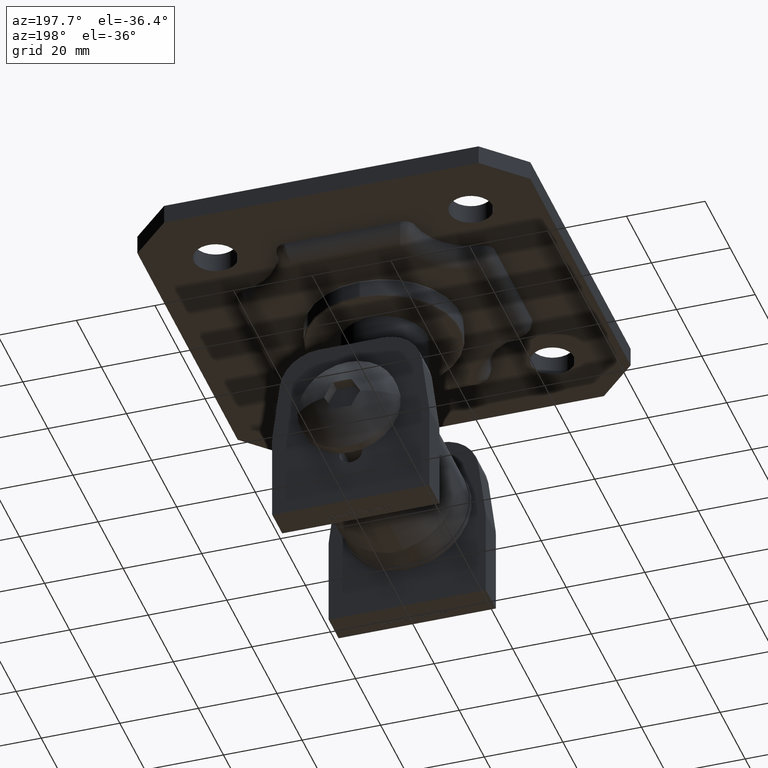
[diagram: clean part render]
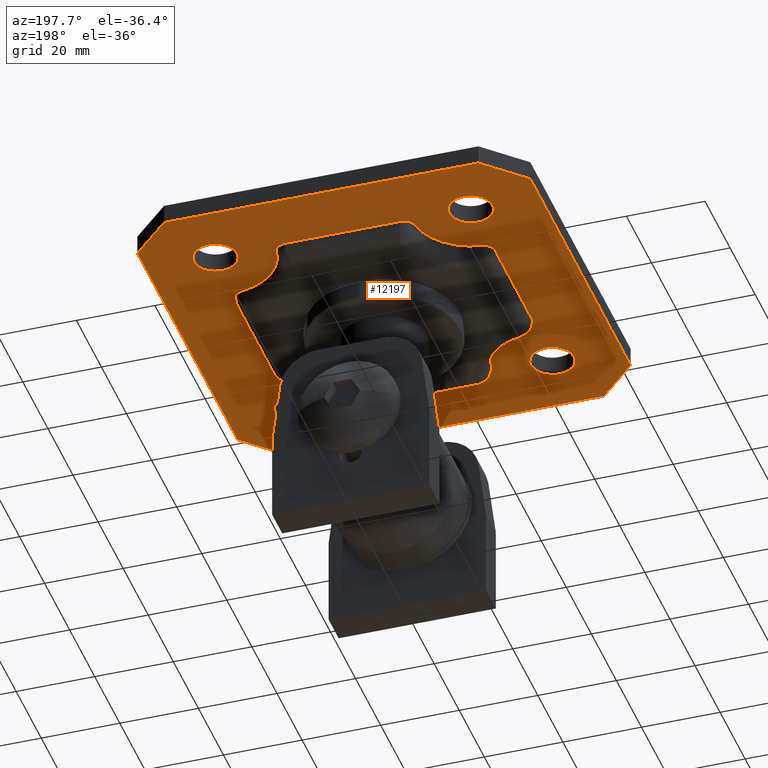
[diagram: same view with one face highlighted and labeled with its STEP entity id]
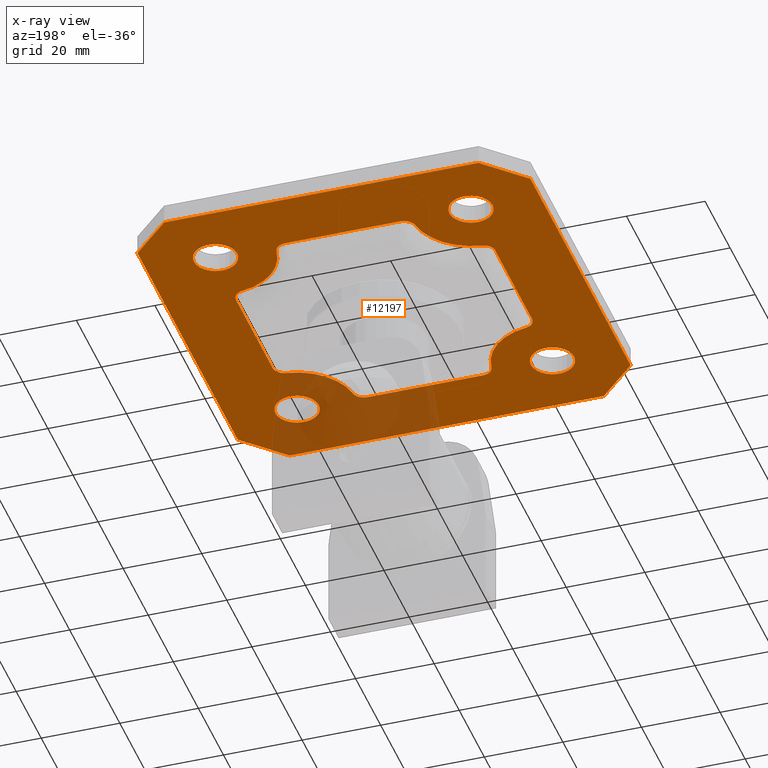
[diagram: x-ray of the same camera — body ghosted, the highlighted face saturated]
A machine part, auxiliary view. The second image highlights one B-rep face of the part: STEP entity #12197.
The next image is the same camera in x-ray: the body ghosted, the highlighted face saturated — about 14% of this face is hidden behind the body in this view.
In plain terms, the highlighted planar face has unit normal (0, 0, -1).
Its self-contained STEP definition (entity closure, byte-faithful):
#4 = VERTEX_POINT ( 'NONE', #13629 ) ;
#54 = CARTESIAN_POINT ( 'NONE',  ( -33.00000000000072500, 14.67445653002448200, 2.500000000000002200 ) ) ;
#106 = ORIENTED_EDGE ( 'NONE', *, *, #14741, .F. ) ;
#114 = VECTOR ( 'NONE', #8199, 1000.000000000000000 ) ;
#141 = DIRECTION ( 'NONE',  ( 0.0000000000000000000, 0.0000000000000000000, -1.000000000000000000 ) ) ;
#198 = LINE ( 'NONE', #10605, #11811 ) ;
#201 = EDGE_CURVE ( 'NONE', #4066, #16211, #8967, .T. ) ;
#241 = EDGE_CURVE ( 'NONE', #4, #11179, #6632, .T. ) ;
#295 = ORIENTED_EDGE ( 'NONE', *, *, #1381, .F. ) ;
#313 = LINE ( 'NONE', #4965, #13623 ) ;
#332 = CARTESIAN_POINT ( 'NONE',  ( -50.00000000000146400, 50.00000000000145000, 2.500000000000002200 ) ) ;
#350 = AXIS2_PLACEMENT_3D ( 'NONE', #1067, #3808, #15915 ) ;
#363 = ORIENTED_EDGE ( 'NONE', *, *, #16099, .F. ) ;
#392 = VECTOR ( 'NONE', #4479, 1000.000000000000000 ) ;
#410 = AXIS2_PLACEMENT_3D ( 'NONE', #12092, #13455, #1261 ) ;
#420 = CARTESIAN_POINT ( 'NONE',  ( -50.00000000000146400, 50.00000000000145000, 2.500000000000002200 ) ) ;
#453 = CIRCLE ( 'NONE', #4425, 5.500000000000122600 ) ;
#547 = DIRECTION ( 'NONE',  ( -0.0000000000000000000, -0.0000000000000000000, -1.000000000000000000 ) ) ;
#681 = CARTESIAN_POINT ( 'NONE',  ( -27.00000000000073500, -32.50000000000073900, 2.500000000000002200 ) ) ;
#716 = DIRECTION ( 'NONE',  ( 0.0000000000000000000, 0.0000000000000000000, 1.000000000000000000 ) ) ;
#994 = AXIS2_PLACEMENT_3D ( 'NONE', #14898, #141, #10810 ) ;
#1066 = DIRECTION ( 'NONE',  ( 1.000000000000000000, 0.0000000000000000000, 0.0000000000000000000 ) ) ;
#1067 = CARTESIAN_POINT ( 'NONE',  ( -30.00000000000072500, 14.67445653002448200, 2.500000000000002200 ) ) ;
#1091 = EDGE_CURVE ( 'NONE', #7511, #2067, #2011, .T. ) ;
#1233 = LINE ( 'NONE', #332, #9242 ) ;
#1261 = DIRECTION ( 'NONE',  ( 1.000000000000000000, 0.0000000000000000000, 0.0000000000000000000 ) ) ;
#1293 = AXIS2_PLACEMENT_3D ( 'NONE', #3813, #7749, #2409 ) ;
#1373 = CARTESIAN_POINT ( 'NONE',  ( -33.00000000000072500, 17.50833564943542000, 2.500000000000002200 ) ) ;
#1381 = EDGE_CURVE ( 'NONE', #9976, #8671, #4531, .T. ) ;
#1542 = ORIENTED_EDGE ( 'NONE', *, *, #13569, .T. ) ;
#1592 = DIRECTION ( 'NONE',  ( 0.0000000000000000000, 0.0000000000000000000, -1.000000000000000000 ) ) ;
#1632 = EDGE_CURVE ( 'NONE', #4158, #9030, #3922, .T. ) ;
#1689 = EDGE_LOOP ( 'NONE', ( #15561, #3233 ) ) ;
#1737 = ORIENTED_EDGE ( 'NONE', *, *, #13644, .T. ) ;
#1769 = DIRECTION ( 'NONE',  ( 1.000000000000000000, 0.0000000000000000000, 0.0000000000000000000 ) ) ;
#1794 = CARTESIAN_POINT ( 'NONE',  ( 40.00000000000070300, 50.00000000000145000, 2.500000000000002200 ) ) ;
#1813 = EDGE_CURVE ( 'NONE', #10911, #2622, #2637, .T. ) ;
#2011 = CIRCLE ( 'NONE', #13645, 3.000000000000068400 ) ;
#2067 = VERTEX_POINT ( 'NONE', #14310 ) ;
#2280 = CIRCLE ( 'NONE', #350, 3.000000000000068400 ) ;
#2305 = EDGE_CURVE ( 'NONE', #7795, #14735, #12748, .T. ) ;
#2348 = EDGE_CURVE ( 'NONE', #6807, #2812, #9148, .T. ) ;
#2394 = CARTESIAN_POINT ( 'NONE',  ( 30.00000000000072500, -14.67445653002448200, 2.500000000000002200 ) ) ;
#2409 = DIRECTION ( 'NONE',  ( 1.000000000000000000, 0.0000000000000000000, 0.0000000000000000000 ) ) ;
#2497 = ORIENTED_EDGE ( 'NONE', *, *, #7103, .T. ) ;
#2551 = AXIS2_PLACEMENT_3D ( 'NONE', #11453, #6173, #16701 ) ;
#2555 = LINE ( 'NONE', #420, #14969 ) ;
#2592 = VERTEX_POINT ( 'NONE', #5577 ) ;
#2596 = ORIENTED_EDGE ( 'NONE', *, *, #6244, .F. ) ;
#2622 = VERTEX_POINT ( 'NONE', #12221 ) ;
#2637 = CIRCLE ( 'NONE', #994, 15.00000000000034600 ) ;
#2682 = ORIENTED_EDGE ( 'NONE', *, *, #2305, .T. ) ;
#2698 = DIRECTION ( 'NONE',  ( 0.7071067811865464600, -0.7071067811865485700, -0.0000000000000000000 ) ) ;
#2785 = FACE_BOUND ( 'NONE', #1689, .T. ) ;
#2812 = VERTEX_POINT ( 'NONE', #5839 ) ;
#2953 = DIRECTION ( 'NONE',  ( -0.7071067811865485700, -0.7071067811865464600, -0.0000000000000000000 ) ) ;
#2966 = CARTESIAN_POINT ( 'NONE',  ( -40.00000000000073200, 50.00000000000145000, 2.500000000000002200 ) ) ;
#3093 = AXIS2_PLACEMENT_3D ( 'NONE', #4240, #15080, #12303 ) ;
#3186 = VERTEX_POINT ( 'NONE', #681 ) ;
#3194 = CARTESIAN_POINT ( 'NONE',  ( -17.50833564943542300, -33.00000000000072500, 2.500000000000002200 ) ) ;
#3233 = ORIENTED_EDGE ( 'NONE', *, *, #10556, .F. ) ;
#3255 = LINE ( 'NONE', #3988, #5986 ) ;
#3288 = DIRECTION ( 'NONE',  ( 1.000000000000000000, 0.0000000000000000000, 0.0000000000000000000 ) ) ;
#3446 = CARTESIAN_POINT ( 'NONE',  ( 45.00000000000077400, 45.00000000000065400, 2.500000000000002200 ) ) ;
#3467 = CARTESIAN_POINT ( 'NONE',  ( -30.00000000000072500, -14.67445653002447900, 2.500000000000002200 ) ) ;
#3688 = DIRECTION ( 'NONE',  ( 1.000000000000000000, 0.0000000000000000000, 0.0000000000000000000 ) ) ;
#3808 = DIRECTION ( 'NONE',  ( -0.0000000000000000000, -0.0000000000000000000, -1.000000000000000000 ) ) ;
#3813 = CARTESIAN_POINT ( 'NONE',  ( -14.67445653002448900, -30.00000000000072500, 2.500000000000002200 ) ) ;
#3823 = ORIENTED_EDGE ( 'NONE', *, *, #1091, .T. ) ;
#3834 = CARTESIAN_POINT ( 'NONE',  ( 32.50000000000071800, -32.50000000000073900, 2.500000000000002200 ) ) ;
#3860 = ORIENTED_EDGE ( 'NONE', *, *, #7656, .F. ) ;
#3922 = LINE ( 'NONE', #3446, #13382 ) ;
#3988 = CARTESIAN_POINT ( 'NONE',  ( 45.00000000000060400, -45.00000000000079600, 2.500000000000002200 ) ) ;
#4042 = EDGE_CURVE ( 'NONE', #9030, #7795, #1233, .T. ) ;
#4066 = VERTEX_POINT ( 'NONE', #9828 ) ;
#4129 = VERTEX_POINT ( 'NONE', #4244 ) ;
#4158 = VERTEX_POINT ( 'NONE', #10240 ) ;
#4179 = AXIS2_PLACEMENT_3D ( 'NONE', #6835, #5531, #10942 ) ;
#4203 = LINE ( 'NONE', #3194, #392 ) ;
#4215 = LINE ( 'NONE', #12154, #10947 ) ;
#4240 = CARTESIAN_POINT ( 'NONE',  ( 30.00000000000072500, 14.67445653002448200, 2.500000000000002200 ) ) ;
#4244 = CARTESIAN_POINT ( 'NONE',  ( -50.00000000000145700, -40.00000000000066100, 2.500000000000002200 ) ) ;
#4324 = AXIS2_PLACEMENT_3D ( 'NONE', #12428, #12618, #5974 ) ;
#4327 = ORIENTED_EDGE ( 'NONE', *, *, #1813, .F. ) ;
#4371 = DIRECTION ( 'NONE',  ( 1.000000000000000000, 0.0000000000000000000, 0.0000000000000000000 ) ) ;
#4425 = AXIS2_PLACEMENT_3D ( 'NONE', #14892, #14946, #8167 ) ;
#4479 = DIRECTION ( 'NONE',  ( 1.000000000000000000, 0.0000000000000000000, 0.0000000000000000000 ) ) ;
#4496 = ORIENTED_EDGE ( 'NONE', *, *, #17101, .T. ) ;
#4500 = CARTESIAN_POINT ( 'NONE',  ( 27.00000000000071800, -32.50000000000073900, 2.500000000000002200 ) ) ;
#4531 = CIRCLE ( 'NONE', #410, 5.500000000000122600 ) ;
#4560 = AXIS2_PLACEMENT_3D ( 'NONE', #3467, #7616, #7559 ) ;
#4569 = DIRECTION ( 'NONE',  ( 2.081668171172159400E-016, -1.000000000000000000, -0.0000000000000000000 ) ) ;
#4749 = DIRECTION ( 'NONE',  ( 0.0000000000000000000, 0.0000000000000000000, 1.000000000000000000 ) ) ;
#4762 = CARTESIAN_POINT ( 'NONE',  ( -50.00000000000145700, 40.00000000000074600, 2.500000000000002200 ) ) ;
#4787 = VERTEX_POINT ( 'NONE', #16514 ) ;
#4788 = CARTESIAN_POINT ( 'NONE',  ( -32.50000000000073200, 32.50000000000073200, 2.500000000000002200 ) ) ;
#4965 = CARTESIAN_POINT ( 'NONE',  ( -17.50833564943542300, 33.00000000000072500, 2.500000000000002200 ) ) ;
#5020 = DIRECTION ( 'NONE',  ( -0.7071067811865464600, 0.7071067811865485700, 0.0000000000000000000 ) ) ;
#5082 = CIRCLE ( 'NONE', #16619, 3.000000000000068400 ) ;
#5176 = ORIENTED_EDGE ( 'NONE', *, *, #11142, .T. ) ;
#5263 = CARTESIAN_POINT ( 'NONE',  ( -14.67445653002448900, -33.00000000000072500, 2.500000000000002200 ) ) ;
#5410 = CIRCLE ( 'NONE', #2551, 15.00000000000034600 ) ;
#5531 = DIRECTION ( 'NONE',  ( 0.0000000000000000000, 0.0000000000000000000, 1.000000000000000000 ) ) ;
#5577 = CARTESIAN_POINT ( 'NONE',  ( 40.00000000000064700, -50.00000000000145000, 2.500000000000002200 ) ) ;
#5704 = CARTESIAN_POINT ( 'NONE',  ( -30.41666666666738900, 17.64538044168713400, 2.500000000000002200 ) ) ;
#5839 = CARTESIAN_POINT ( 'NONE',  ( 38.00000000000071100, -32.50000000000073900, 2.500000000000002200 ) ) ;
#5974 = DIRECTION ( 'NONE',  ( 1.000000000000000000, 0.0000000000000000000, 0.0000000000000000000 ) ) ;
#5986 = VECTOR ( 'NONE', #8095, 1000.000000000000200 ) ;
#6021 = ORIENTED_EDGE ( 'NONE', *, *, #241, .T. ) ;
#6138 = DIRECTION ( 'NONE',  ( 0.0000000000000000000, 0.0000000000000000000, 1.000000000000000000 ) ) ;
#6173 = DIRECTION ( 'NONE',  ( 0.0000000000000000000, 0.0000000000000000000, -1.000000000000000000 ) ) ;
#6205 = CARTESIAN_POINT ( 'NONE',  ( 14.67445653002448200, -30.00000000000072500, 2.500000000000002200 ) ) ;
#6222 = VERTEX_POINT ( 'NONE', #5704 ) ;
#6244 = EDGE_CURVE ( 'NONE', #14431, #6222, #13843, .T. ) ;
#6272 = DIRECTION ( 'NONE',  ( 1.000000000000000000, 0.0000000000000000000, 0.0000000000000000000 ) ) ;
#6374 = FACE_BOUND ( 'NONE', #8704, .T. ) ;
#6568 = CARTESIAN_POINT ( 'NONE',  ( 33.00000000000072500, 17.50833564943542000, 2.500000000000002200 ) ) ;
#6592 = CARTESIAN_POINT ( 'NONE',  ( 38.00000000000071100, 32.50000000000069600, 2.500000000000002200 ) ) ;
#6632 = CIRCLE ( 'NONE', #9892, 3.000000000000068400 ) ;
#6646 = EDGE_LOOP ( 'NONE', ( #11408, #10247 ) ) ;
#6678 = DIRECTION ( 'NONE',  ( -6.938893903907195100E-017, 1.000000000000000000, 0.0000000000000000000 ) ) ;
#6807 = VERTEX_POINT ( 'NONE', #4500 ) ;
#6808 = CIRCLE ( 'NONE', #8271, 5.500000000000122600 ) ;
#6835 = CARTESIAN_POINT ( 'NONE',  ( 32.50000000000071800, -32.50000000000073900, 2.500000000000002200 ) ) ;
#6858 = EDGE_LOOP ( 'NONE', ( #3860, #2497, #2596, #4496, #8533, #3823, #106, #5176, #363, #6021, #11218, #14816, #13751, #8393, #4327, #15542 ) ) ;
#6900 = DIRECTION ( 'NONE',  ( -1.000000000000000000, 0.0000000000000000000, 0.0000000000000000000 ) ) ;
#7103 = EDGE_CURVE ( 'NONE', #7645, #6222, #2280, .T. ) ;
#7511 = VERTEX_POINT ( 'NONE', #11797 ) ;
#7559 = DIRECTION ( 'NONE',  ( 1.000000000000000000, 1.156482317317845100E-015, 0.0000000000000000000 ) ) ;
#7616 = DIRECTION ( 'NONE',  ( -0.0000000000000000000, -0.0000000000000000000, -1.000000000000000000 ) ) ;
#7645 = VERTEX_POINT ( 'NONE', #54 ) ;
#7656 = EDGE_CURVE ( 'NONE', #7645, #13056, #13214, .T. ) ;
#7663 = ORIENTED_EDGE ( 'NONE', *, *, #4042, .T. ) ;
#7749 = DIRECTION ( 'NONE',  ( -0.0000000000000000000, -0.0000000000000000000, -1.000000000000000000 ) ) ;
#7781 = CARTESIAN_POINT ( 'NONE',  ( -40.00000000000073200, -50.00000000000145000, 2.500000000000002200 ) ) ;
#7795 = VERTEX_POINT ( 'NONE', #2966 ) ;
#7898 = VERTEX_POINT ( 'NONE', #12802 ) ;
#7962 = EDGE_CURVE ( 'NONE', #8671, #9976, #12344, .T. ) ;
#8002 = DIRECTION ( 'NONE',  ( 1.000000000000000000, 0.0000000000000000000, 0.0000000000000000000 ) ) ;
#8018 = EDGE_CURVE ( 'NONE', #7511, #15496, #313, .T. ) ;
#8095 = DIRECTION ( 'NONE',  ( 0.7071067811865490200, 0.7071067811865460200, -0.0000000000000000000 ) ) ;
#8167 = DIRECTION ( 'NONE',  ( 1.000000000000000000, 0.0000000000000000000, 0.0000000000000000000 ) ) ;
#8175 = CARTESIAN_POINT ( 'NONE',  ( -38.00000000000072500, 32.50000000000073200, 2.500000000000002200 ) ) ;
#8188 = CARTESIAN_POINT ( 'NONE',  ( 30.41666666666738900, -17.64538044168713400, 2.500000000000002200 ) ) ;
#8199 = DIRECTION ( 'NONE',  ( 0.0000000000000000000, -1.000000000000000000, -0.0000000000000000000 ) ) ;
#8238 = CARTESIAN_POINT ( 'NONE',  ( -45.00000000000066800, 45.00000000000079600, 2.500000000000002200 ) ) ;
#8271 = AXIS2_PLACEMENT_3D ( 'NONE', #11557, #716, #6272 ) ;
#8291 = CARTESIAN_POINT ( 'NONE',  ( -32.50000000000073200, 32.50000000000073200, 2.500000000000002200 ) ) ;
#8393 = ORIENTED_EDGE ( 'NONE', *, *, #13911, .T. ) ;
#8450 = FACE_BOUND ( 'NONE', #14000, .T. ) ;
#8533 = ORIENTED_EDGE ( 'NONE', *, *, #8018, .F. ) ;
#8594 = AXIS2_PLACEMENT_3D ( 'NONE', #3834, #11982, #13245 ) ;
#8609 = CIRCLE ( 'NONE', #8594, 5.500000000000122600 ) ;
#8668 = LINE ( 'NONE', #6568, #10146 ) ;
#8671 = VERTEX_POINT ( 'NONE', #12879 ) ;
#8704 = EDGE_LOOP ( 'NONE', ( #9710, #11960 ) ) ;
#8782 = EDGE_LOOP ( 'NONE', ( #7663, #2682, #1737, #10983, #16314, #17098, #1542, #15776 ) ) ;
#8967 = CIRCLE ( 'NONE', #11706, 3.000000000000068400 ) ;
#8975 = EDGE_CURVE ( 'NONE', #13116, #3186, #13582, .T. ) ;
#9030 = VERTEX_POINT ( 'NONE', #1794 ) ;
#9065 = AXIS2_PLACEMENT_3D ( 'NONE', #4788, #6138, #14346 ) ;
#9148 = CIRCLE ( 'NONE', #4179, 5.500000000000122600 ) ;
#9176 = VERTEX_POINT ( 'NONE', #7781 ) ;
#9187 = DIRECTION ( 'NONE',  ( -0.0000000000000000000, -0.0000000000000000000, -1.000000000000000000 ) ) ;
#9242 = VECTOR ( 'NONE', #6900, 1000.000000000000000 ) ;
#9288 = AXIS2_PLACEMENT_3D ( 'NONE', #16177, #4749, #3288 ) ;
#9497 = AXIS2_PLACEMENT_3D ( 'NONE', #15593, #13007, #17008 ) ;
#9580 = PLANE ( 'NONE',  #9288 ) ;
#9623 = LINE ( 'NONE', #13394, #10800 ) ;
#9710 = ORIENTED_EDGE ( 'NONE', *, *, #15803, .F. ) ;
#9828 = CARTESIAN_POINT ( 'NONE',  ( 17.64538044168713400, -30.41666666666738900, 2.500000000000002200 ) ) ;
#9892 = AXIS2_PLACEMENT_3D ( 'NONE', #2394, #9187, #8002 ) ;
#9976 = VERTEX_POINT ( 'NONE', #8175 ) ;
#10146 = VECTOR ( 'NONE', #14815, 1000.000000000000000 ) ;
#10232 = EDGE_CURVE ( 'NONE', #2592, #12696, #3255, .T. ) ;
#10240 = CARTESIAN_POINT ( 'NONE',  ( 50.00000000000144200, 40.00000000000069600, 2.500000000000002200 ) ) ;
#10247 = ORIENTED_EDGE ( 'NONE', *, *, #14514, .F. ) ;
#10327 = CIRCLE ( 'NONE', #1293, 3.000000000000068400 ) ;
#10341 = FACE_BOUND ( 'NONE', #6858, .T. ) ;
#10556 = EDGE_CURVE ( 'NONE', #3186, #13116, #16725, .T. ) ;
#10605 = CARTESIAN_POINT ( 'NONE',  ( -50.00000000000145000, -50.00000000000145000, 2.500000000000002200 ) ) ;
#10670 = EDGE_CURVE ( 'NONE', #10911, #13056, #17355, .T. ) ;
#10797 = CIRCLE ( 'NONE', #9497, 15.00000000000034600 ) ;
#10800 = VECTOR ( 'NONE', #2698, 999.9999999999998900 ) ;
#10810 = DIRECTION ( 'NONE',  ( 1.000000000000000000, 0.0000000000000000000, 0.0000000000000000000 ) ) ;
#10911 = VERTEX_POINT ( 'NONE', #11899 ) ;
#10942 = DIRECTION ( 'NONE',  ( 1.000000000000000000, 0.0000000000000000000, 0.0000000000000000000 ) ) ;
#10947 = VECTOR ( 'NONE', #6678, 1000.000000000000000 ) ;
#10983 = ORIENTED_EDGE ( 'NONE', *, *, #14867, .T. ) ;
#11127 = DIRECTION ( 'NONE',  ( 0.0000000000000000000, 0.0000000000000000000, 1.000000000000000000 ) ) ;
#11142 = EDGE_CURVE ( 'NONE', #7898, #4787, #11657, .T. ) ;
#11179 = VERTEX_POINT ( 'NONE', #8188 ) ;
#11218 = ORIENTED_EDGE ( 'NONE', *, *, #14713, .F. ) ;
#11406 = CARTESIAN_POINT ( 'NONE',  ( -14.67445653002448200, 33.00000000000072500, 2.500000000000002200 ) ) ;
#11408 = ORIENTED_EDGE ( 'NONE', *, *, #2348, .F. ) ;
#11453 = CARTESIAN_POINT ( 'NONE',  ( 32.50000000000073200, -32.50000000000073200, 2.500000000000002200 ) ) ;
#11557 = CARTESIAN_POINT ( 'NONE',  ( 32.50000000000071800, 32.50000000000069600, 2.500000000000002200 ) ) ;
#11657 = CIRCLE ( 'NONE', #3093, 3.000000000000068400 ) ;
#11706 = AXIS2_PLACEMENT_3D ( 'NONE', #6205, #17146, #3688 ) ;
#11797 = CARTESIAN_POINT ( 'NONE',  ( 14.67445653002448600, 33.00000000000072500, 2.500000000000002200 ) ) ;
#11810 = CARTESIAN_POINT ( 'NONE',  ( 27.00000000000072100, 32.50000000000069600, 2.500000000000002200 ) ) ;
#11811 = VECTOR ( 'NONE', #1066, 1000.000000000000000 ) ;
#11899 = CARTESIAN_POINT ( 'NONE',  ( -30.41666666666739300, -17.64538044168712400, 2.500000000000002200 ) ) ;
#11960 = ORIENTED_EDGE ( 'NONE', *, *, #15085, .F. ) ;
#11966 = DIRECTION ( 'NONE',  ( -0.0000000000000000000, -0.0000000000000000000, -1.000000000000000000 ) ) ;
#11982 = DIRECTION ( 'NONE',  ( 0.0000000000000000000, 0.0000000000000000000, 1.000000000000000000 ) ) ;
#12092 = CARTESIAN_POINT ( 'NONE',  ( -32.50000000000073200, 32.50000000000073200, 2.500000000000002200 ) ) ;
#12154 = CARTESIAN_POINT ( 'NONE',  ( 50.00000000000144200, 50.00000000000145000, 2.500000000000002200 ) ) ;
#12197 = ADVANCED_FACE ( 'NONE', ( #13517, #8450, #17111, #6374, #2785, #10341 ), #9580, .T. ) ;
#12221 = CARTESIAN_POINT ( 'NONE',  ( -17.64538044168713800, -30.41666666666738900, 2.500000000000002200 ) ) ;
#12303 = DIRECTION ( 'NONE',  ( 1.000000000000000000, 1.156482317317845100E-015, 0.0000000000000000000 ) ) ;
#12344 = CIRCLE ( 'NONE', #9065, 5.500000000000122600 ) ;
#12369 = CARTESIAN_POINT ( 'NONE',  ( 50.00000000000144200, -40.00000000000072500, 2.500000000000002200 ) ) ;
#12428 = CARTESIAN_POINT ( 'NONE',  ( -32.50000000000073200, -32.50000000000073900, 2.500000000000002200 ) ) ;
#12546 = AXIS2_PLACEMENT_3D ( 'NONE', #8291, #1592, #1769 ) ;
#12618 = DIRECTION ( 'NONE',  ( 0.0000000000000000000, 0.0000000000000000000, 1.000000000000000000 ) ) ;
#12696 = VERTEX_POINT ( 'NONE', #12369 ) ;
#12748 = LINE ( 'NONE', #8238, #13790 ) ;
#12751 = DIRECTION ( 'NONE',  ( 1.000000000000000000, -3.469446951953534900E-015, 0.0000000000000000000 ) ) ;
#12802 = CARTESIAN_POINT ( 'NONE',  ( 30.41666666666738900, 17.64538044168713400, 2.500000000000002200 ) ) ;
#12879 = CARTESIAN_POINT ( 'NONE',  ( -27.00000000000073500, 32.50000000000073200, 2.500000000000002200 ) ) ;
#12998 = VERTEX_POINT ( 'NONE', #6592 ) ;
#13007 = DIRECTION ( 'NONE',  ( 0.0000000000000000000, 0.0000000000000000000, -1.000000000000000000 ) ) ;
#13056 = VERTEX_POINT ( 'NONE', #15946 ) ;
#13076 = CARTESIAN_POINT ( 'NONE',  ( -17.64538044168713400, 30.41666666666738900, 2.500000000000002200 ) ) ;
#13116 = VERTEX_POINT ( 'NONE', #13253 ) ;
#13205 = DIRECTION ( 'NONE',  ( -1.000000000000000000, 0.0000000000000000000, 0.0000000000000000000 ) ) ;
#13214 = LINE ( 'NONE', #1373, #114 ) ;
#13245 = DIRECTION ( 'NONE',  ( 1.000000000000000000, 0.0000000000000000000, 0.0000000000000000000 ) ) ;
#13253 = CARTESIAN_POINT ( 'NONE',  ( -38.00000000000072500, -32.50000000000073900, 2.500000000000002200 ) ) ;
#13370 = VERTEX_POINT ( 'NONE', #11810 ) ;
#13382 = VECTOR ( 'NONE', #5020, 999.9999999999998900 ) ;
#13394 = CARTESIAN_POINT ( 'NONE',  ( -45.00000000000078200, -45.00000000000066100, 2.500000000000002200 ) ) ;
#13455 = DIRECTION ( 'NONE',  ( 0.0000000000000000000, 0.0000000000000000000, 1.000000000000000000 ) ) ;
#13517 = FACE_BOUND ( 'NONE', #6646, .T. ) ;
#13569 = EDGE_CURVE ( 'NONE', #12696, #4158, #4215, .T. ) ;
#13582 = CIRCLE ( 'NONE', #15826, 5.500000000000122600 ) ;
#13623 = VECTOR ( 'NONE', #13205, 1000.000000000000000 ) ;
#13629 = CARTESIAN_POINT ( 'NONE',  ( 33.00000000000072500, -14.67445653002448200, 2.500000000000002200 ) ) ;
#13644 = EDGE_CURVE ( 'NONE', #14735, #4129, #2555, .T. ) ;
#13645 = AXIS2_PLACEMENT_3D ( 'NONE', #16254, #11966, #16028 ) ;
#13751 = ORIENTED_EDGE ( 'NONE', *, *, #14130, .F. ) ;
#13790 = VECTOR ( 'NONE', #2953, 999.9999999999998900 ) ;
#13843 = CIRCLE ( 'NONE', #12546, 15.00000000000034600 ) ;
#13911 = EDGE_CURVE ( 'NONE', #17324, #2622, #10327, .T. ) ;
#14000 = EDGE_LOOP ( 'NONE', ( #295, #16674 ) ) ;
#14071 = CARTESIAN_POINT ( 'NONE',  ( -14.67445653002448200, 30.00000000000072500, 2.500000000000002200 ) ) ;
#14130 = EDGE_CURVE ( 'NONE', #17324, #16211, #4203, .T. ) ;
#14310 = CARTESIAN_POINT ( 'NONE',  ( 17.64538044168713400, 30.41666666666738900, 2.500000000000002200 ) ) ;
#14346 = DIRECTION ( 'NONE',  ( 1.000000000000000000, 0.0000000000000000000, 0.0000000000000000000 ) ) ;
#14431 = VERTEX_POINT ( 'NONE', #13076 ) ;
#14514 = EDGE_CURVE ( 'NONE', #2812, #6807, #8609, .T. ) ;
#14713 = EDGE_CURVE ( 'NONE', #4066, #11179, #5410, .T. ) ;
#14735 = VERTEX_POINT ( 'NONE', #4762 ) ;
#14741 = EDGE_CURVE ( 'NONE', #7898, #2067, #10797, .T. ) ;
#14815 = DIRECTION ( 'NONE',  ( 0.0000000000000000000, 1.000000000000000000, 0.0000000000000000000 ) ) ;
#14816 = ORIENTED_EDGE ( 'NONE', *, *, #201, .T. ) ;
#14867 = EDGE_CURVE ( 'NONE', #4129, #9176, #9623, .T. ) ;
#14892 = CARTESIAN_POINT ( 'NONE',  ( 32.50000000000071800, 32.50000000000069600, 2.500000000000002200 ) ) ;
#14898 = CARTESIAN_POINT ( 'NONE',  ( -32.50000000000073900, -32.50000000000072500, 2.500000000000002200 ) ) ;
#14946 = DIRECTION ( 'NONE',  ( 0.0000000000000000000, 0.0000000000000000000, 1.000000000000000000 ) ) ;
#14969 = VECTOR ( 'NONE', #4569, 1000.000000000000000 ) ;
#15080 = DIRECTION ( 'NONE',  ( -0.0000000000000000000, -0.0000000000000000000, -1.000000000000000000 ) ) ;
#15085 = EDGE_CURVE ( 'NONE', #12998, #13370, #6808, .T. ) ;
#15496 = VERTEX_POINT ( 'NONE', #11406 ) ;
#15542 = ORIENTED_EDGE ( 'NONE', *, *, #10670, .T. ) ;
#15561 = ORIENTED_EDGE ( 'NONE', *, *, #8975, .F. ) ;
#15593 = CARTESIAN_POINT ( 'NONE',  ( 32.50000000000073200, 32.50000000000073200, 2.500000000000002200 ) ) ;
#15776 = ORIENTED_EDGE ( 'NONE', *, *, #1632, .T. ) ;
#15803 = EDGE_CURVE ( 'NONE', #13370, #12998, #453, .T. ) ;
#15826 = AXIS2_PLACEMENT_3D ( 'NONE', #16605, #11127, #4371 ) ;
#15915 = DIRECTION ( 'NONE',  ( 1.000000000000000000, 0.0000000000000000000, 0.0000000000000000000 ) ) ;
#15946 = CARTESIAN_POINT ( 'NONE',  ( -33.00000000000072500, -14.67445653002447500, 2.500000000000002200 ) ) ;
#16028 = DIRECTION ( 'NONE',  ( 1.000000000000000000, 0.0000000000000000000, 0.0000000000000000000 ) ) ;
#16099 = EDGE_CURVE ( 'NONE', #4, #4787, #8668, .T. ) ;
#16177 = CARTESIAN_POINT ( 'NONE',  ( 0.0000000000000000000, 0.0000000000000000000, 2.500000000000002200 ) ) ;
#16211 = VERTEX_POINT ( 'NONE', #16378 ) ;
#16254 = CARTESIAN_POINT ( 'NONE',  ( 14.67445653002448200, 30.00000000000072500, 2.500000000000002200 ) ) ;
#16314 = ORIENTED_EDGE ( 'NONE', *, *, #17337, .T. ) ;
#16378 = CARTESIAN_POINT ( 'NONE',  ( 14.67445653002448600, -33.00000000000072500, 2.500000000000002200 ) ) ;
#16514 = CARTESIAN_POINT ( 'NONE',  ( 33.00000000000072500, 14.67445653002448200, 2.500000000000002200 ) ) ;
#16605 = CARTESIAN_POINT ( 'NONE',  ( -32.50000000000073200, -32.50000000000073900, 2.500000000000002200 ) ) ;
#16619 = AXIS2_PLACEMENT_3D ( 'NONE', #14071, #547, #12751 ) ;
#16674 = ORIENTED_EDGE ( 'NONE', *, *, #7962, .F. ) ;
#16701 = DIRECTION ( 'NONE',  ( 1.000000000000000000, 0.0000000000000000000, 0.0000000000000000000 ) ) ;
#16725 = CIRCLE ( 'NONE', #4324, 5.500000000000122600 ) ;
#17008 = DIRECTION ( 'NONE',  ( 1.000000000000000000, 0.0000000000000000000, 0.0000000000000000000 ) ) ;
#17098 = ORIENTED_EDGE ( 'NONE', *, *, #10232, .T. ) ;
#17101 = EDGE_CURVE ( 'NONE', #14431, #15496, #5082, .T. ) ;
#17111 = FACE_OUTER_BOUND ( 'NONE', #8782, .T. ) ;
#17146 = DIRECTION ( 'NONE',  ( -0.0000000000000000000, -0.0000000000000000000, -1.000000000000000000 ) ) ;
#17324 = VERTEX_POINT ( 'NONE', #5263 ) ;
#17337 = EDGE_CURVE ( 'NONE', #9176, #2592, #198, .T. ) ;
#17355 = CIRCLE ( 'NONE', #4560, 3.000000000000068400 ) ;